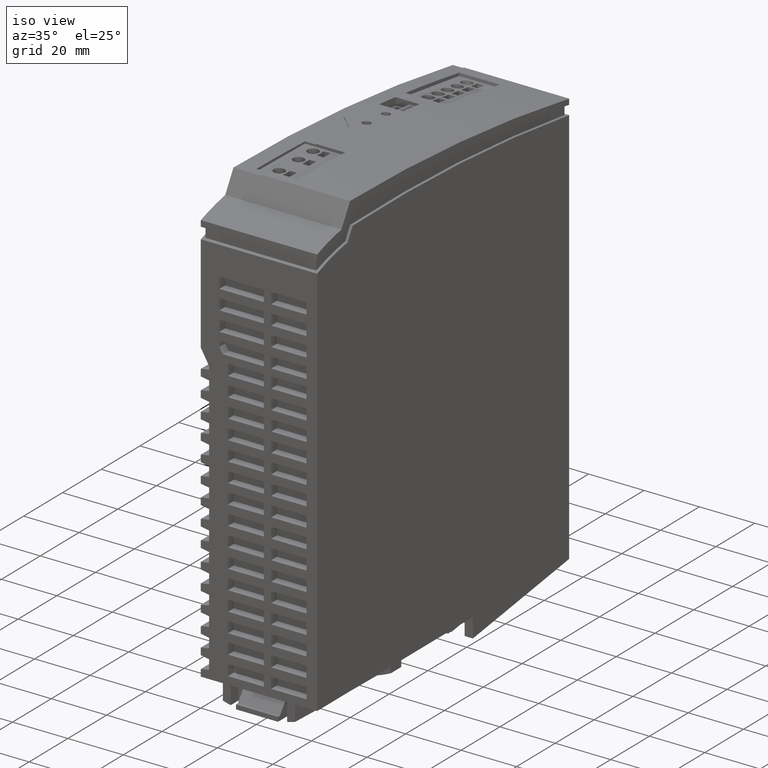
[diagram: clean part render]
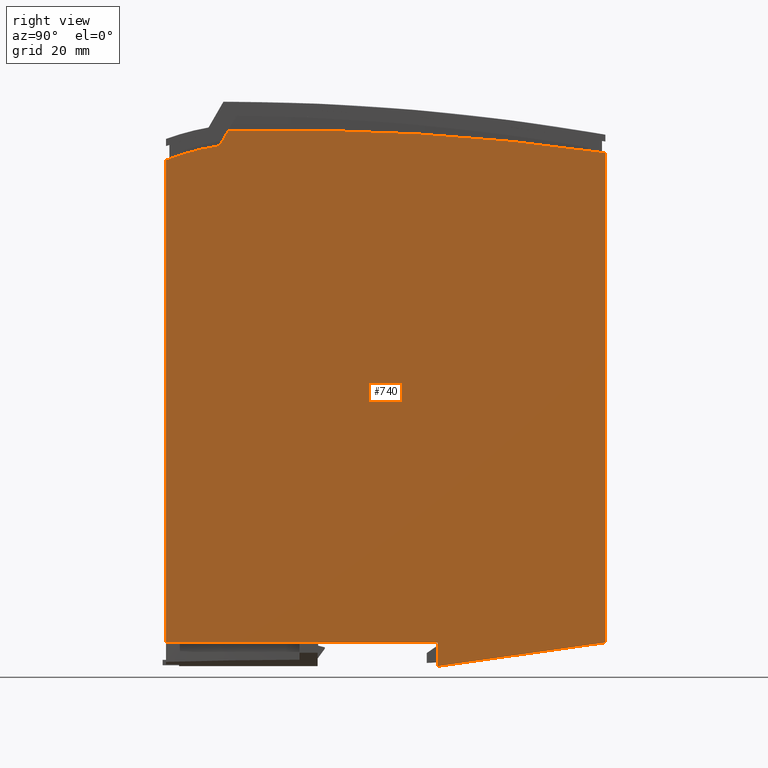
[diagram: tour spotlight — one face highlighted and labeled with its STEP entity id]
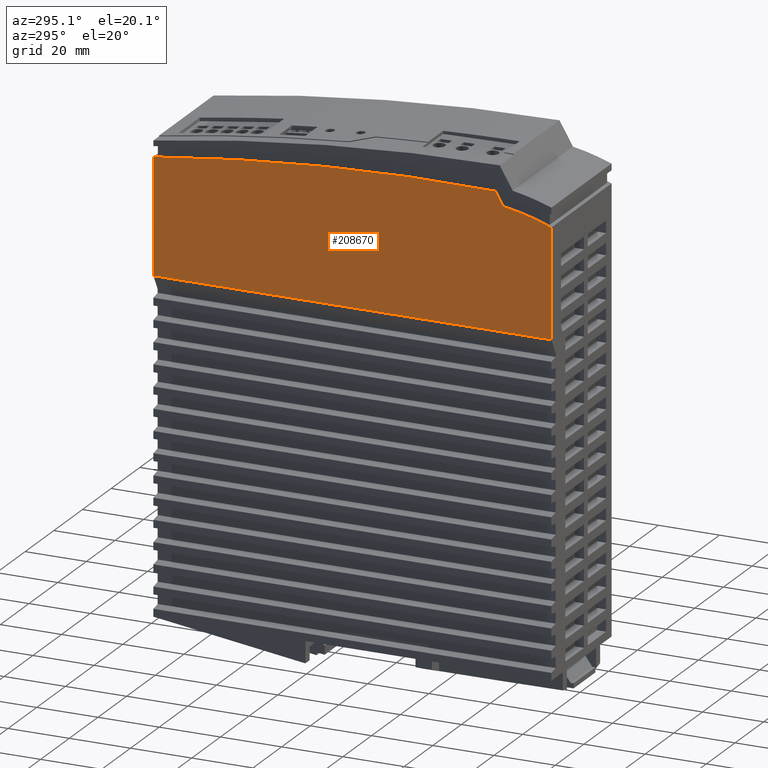
[diagram: tour spotlight — one face highlighted and labeled with its STEP entity id]
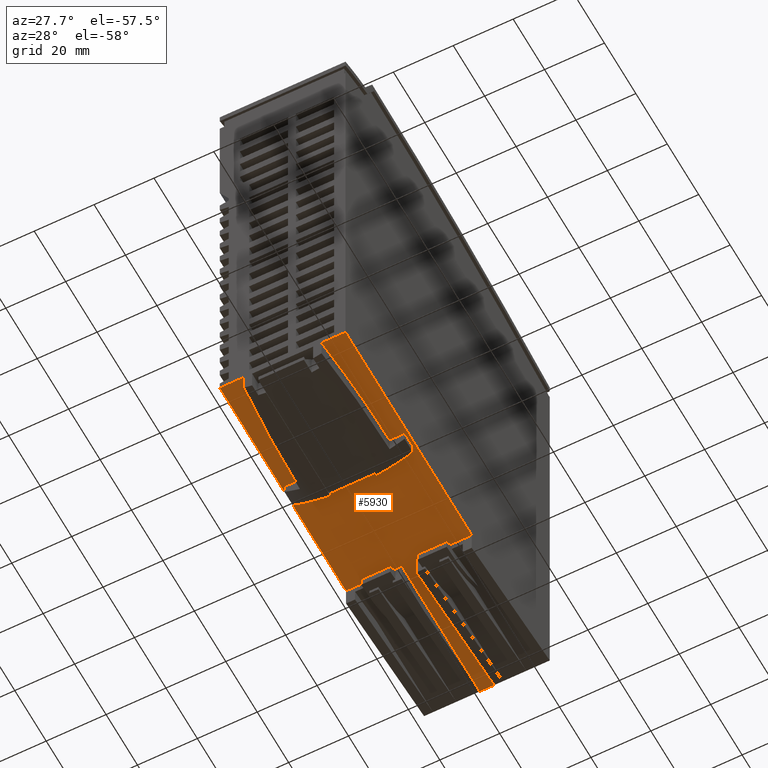
[diagram: tour spotlight — one face highlighted and labeled with its STEP entity id]
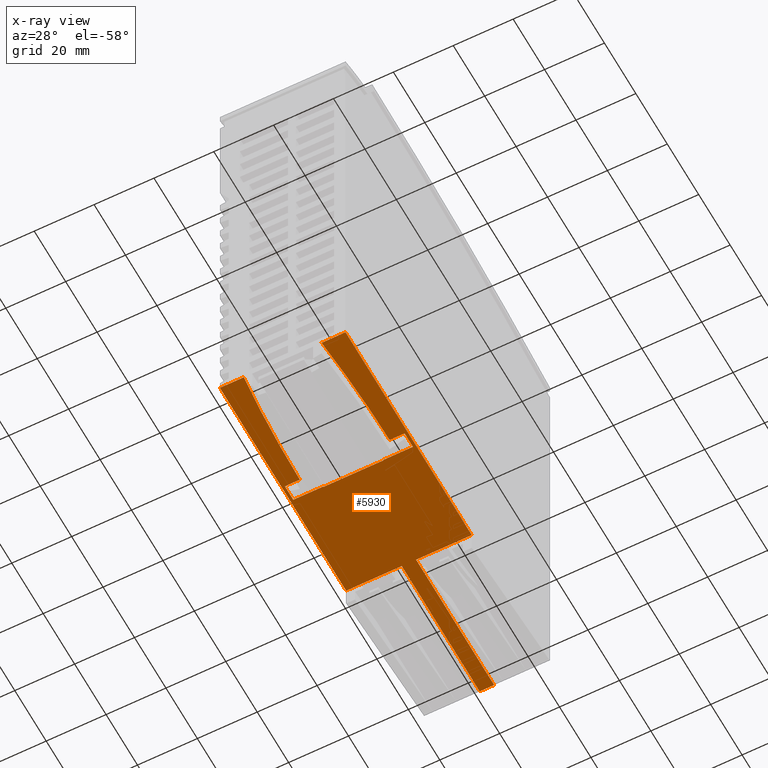
[diagram: x-ray of the same camera — body ghosted, this tour face saturated]
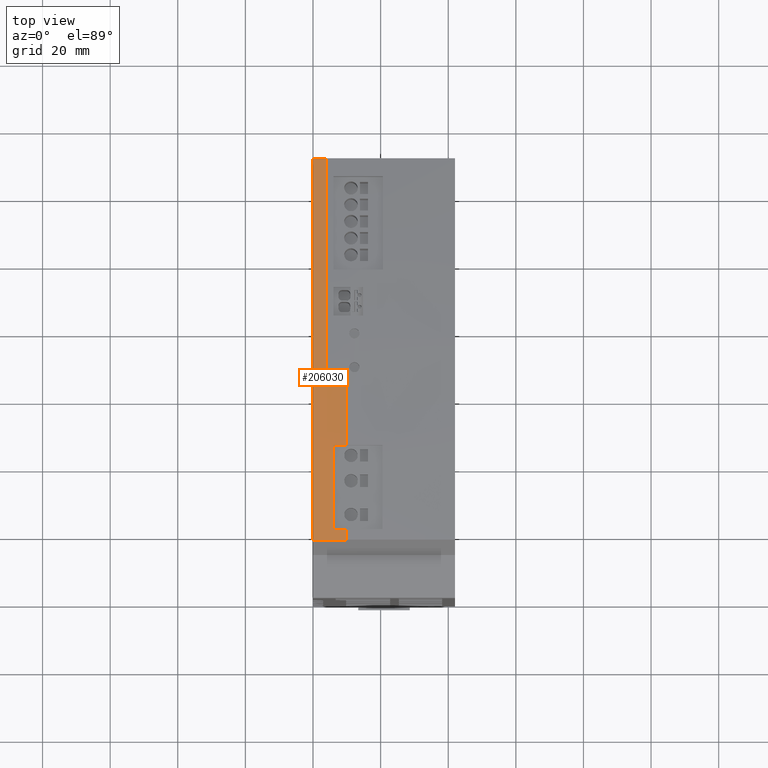
[diagram: tour spotlight — one face highlighted and labeled with its STEP entity id]
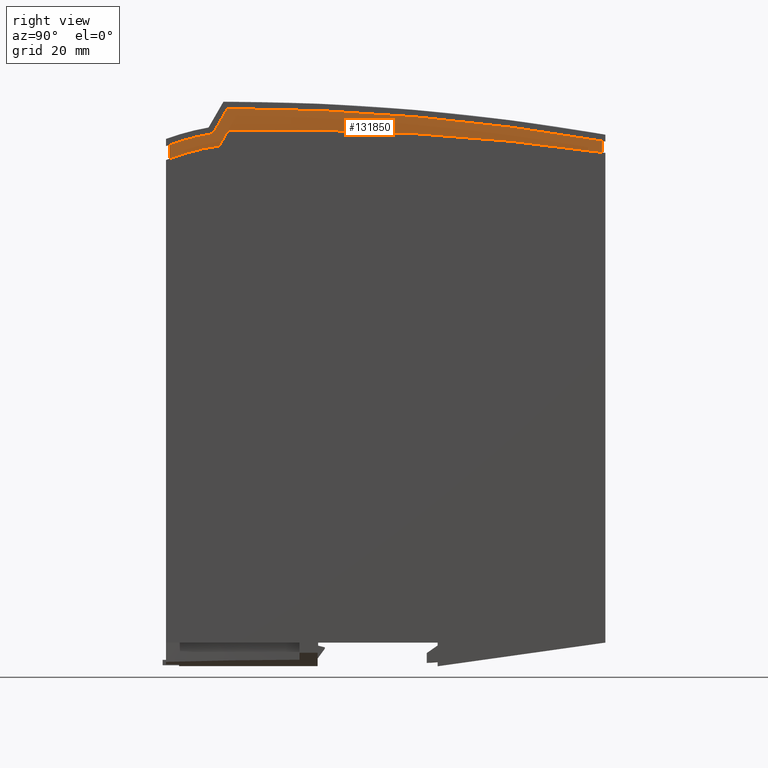
[diagram: tour spotlight — one face highlighted and labeled with its STEP entity id]
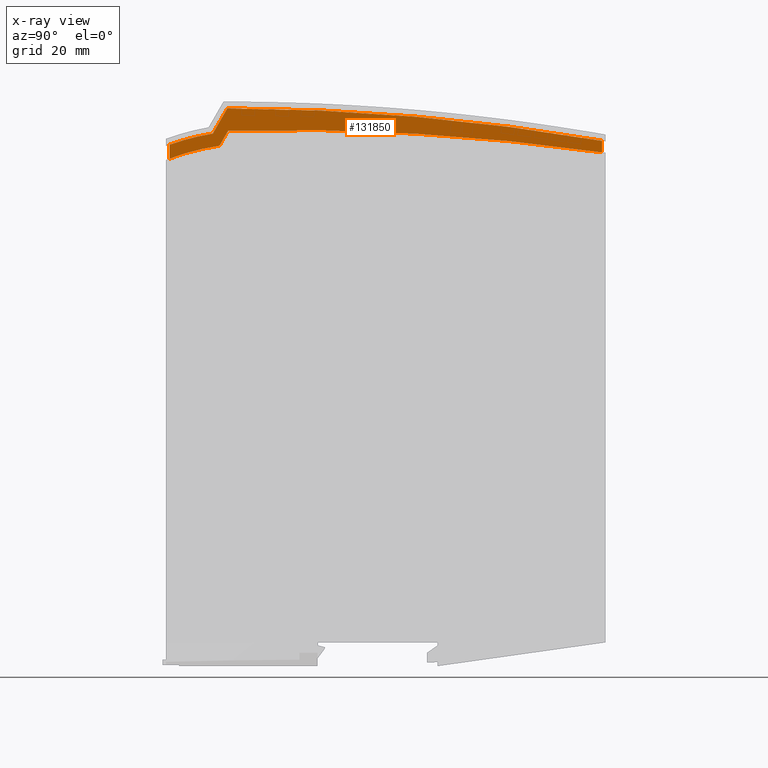
[diagram: x-ray of the same camera — body ghosted, this tour face saturated]
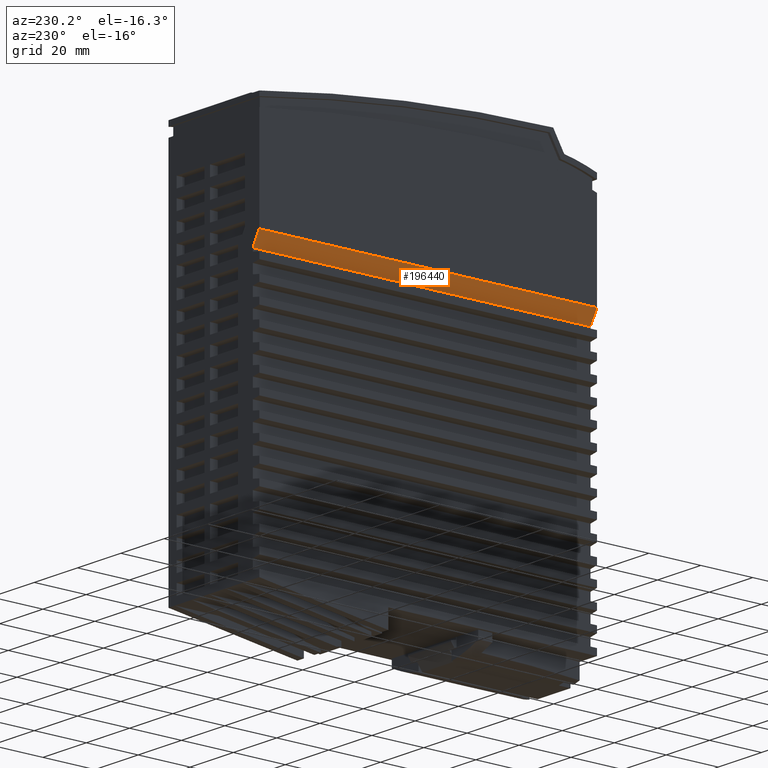
[diagram: tour spotlight — one face highlighted and labeled with its STEP entity id]
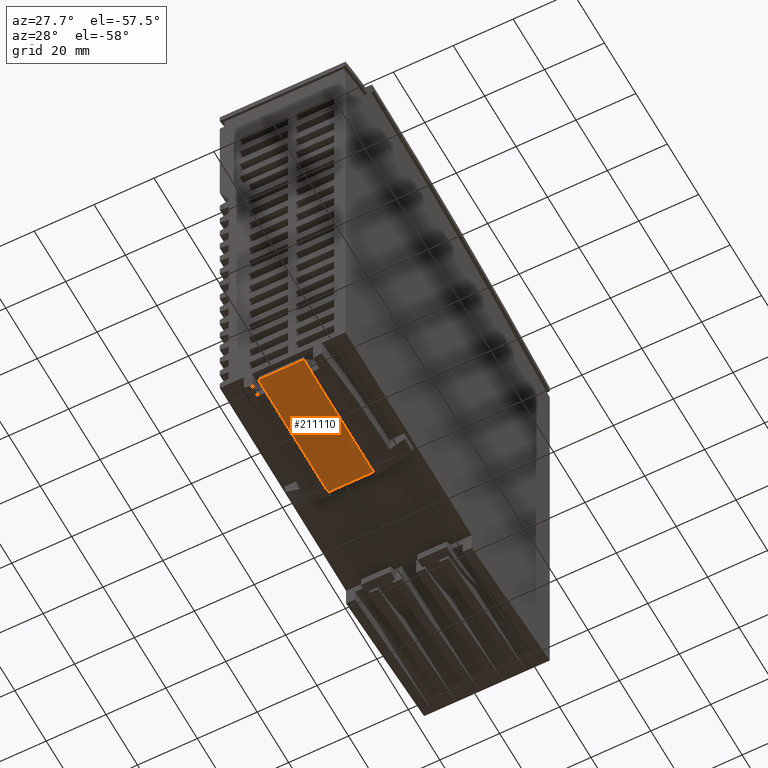
[diagram: tour spotlight — one face highlighted and labeled with its STEP entity id]
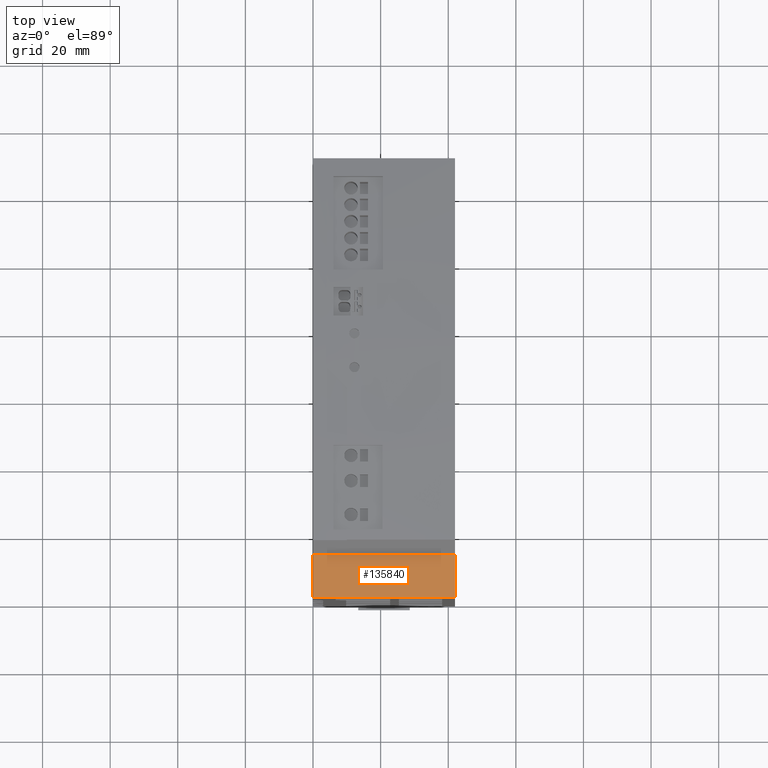
[diagram: tour spotlight — one face highlighted and labeled with its STEP entity id]
A machine part: a face-by-face anatomy tour. The part has 694 B-rep faces; the first image is the clean iso view, then the 8 largest visible faces are spotlighted one at a time (largest first), each with its STEP entity span.

Face 1 — right view, entity #740. In plain terms, the highlighted planar face has unit normal (1, 0, 0).
Definition (entity closure, byte-faithful):
#10=CARTESIAN_POINT('',(0.,0.,-50.5));
#20=DIRECTION('',(0.,0.,-1.));
#30=DIRECTION('',(1.,0.,0.));
#40=AXIS2_PLACEMENT_3D('',#10,#20,#30);
#50=PLANE('',#40);
#60=CARTESIAN_POINT('',(128.90472881771,80.35,-50.5));
#70=DIRECTION('',(-1.,0.,0.));
#80=VECTOR('',#70,1.);
#90=LINE('',#60,#80);
#100=CARTESIAN_POINT('',(0.,80.35,-50.5));
#110=VERTEX_POINT('',#100);
#120=CARTESIAN_POINT('',(-6.99999999999977,80.35,-50.5));
#130=VERTEX_POINT('',#120);
#140=EDGE_CURVE('',#110,#130,#90,.T.);
#150=ORIENTED_EDGE('',*,*,#140,.T.);
#160=CARTESIAN_POINT('',(0.,64.9999998943551,-50.5));
#170=DIRECTION('',(0.,1.,0.));
#180=VECTOR('',#170,1.);
#190=LINE('',#160,#180);
#200=CARTESIAN_POINT('',(0.,0.,-50.5));
#210=VERTEX_POINT('',#200);
#220=EDGE_CURVE('',#210,#110,#190,.T.);
#230=ORIENTED_EDGE('',*,*,#220,.T.);
#240=CARTESIAN_POINT('',(128.90472881771,0.,-50.5));
#250=DIRECTION('',(-1.,0.,0.));
#260=VECTOR('',#250,1.);
#270=LINE('',#240,#260);
#280=CARTESIAN_POINT('',(142.740813604314,0.,-50.5));
#290=VERTEX_POINT('',#280);
#300=EDGE_CURVE('',#290,#210,#270,.T.);
#310=ORIENTED_EDGE('',*,*,#300,.T.);
#320=CARTESIAN_POINT('',(78.52,25.64,-50.5));
#330=DIRECTION('',(0.,0.,1.));
#340=DIRECTION('',(1.,0.,0.));
#350=AXIS2_PLACEMENT_3D('',#320,#330,#340);
#360=CIRCLE('',#350,69.15);
#370=CARTESIAN_POINT('',(146.969994064791,15.8256832876613,-50.5));
#380=VERTEX_POINT('',#370);
#390=EDGE_CURVE('',#290,#380,#360,.T.);
#400=ORIENTED_EDGE('',*,*,#390,.F.);
#410=CARTESIAN_POINT('',(128.90472881771,5.42665736895805,-50.5));
#420=DIRECTION('',(-0.86666783043328,-0.498885629871288,0.));
#430=VECTOR('',#420,1.);
#440=LINE('',#410,#430);
#450=CARTESIAN_POINT('',(151.390000000037,18.3700000000256,-50.5));
#460=VERTEX_POINT('',#450);
#470=EDGE_CURVE('',#460,#380,#440,.T.);
#480=ORIENTED_EDGE('',*,*,#470,.T.);
#490=CARTESIAN_POINT('',(-504.,36.,-50.5));
#500=DIRECTION('',(0.,0.,1.));
#510=DIRECTION('',(1.,0.,0.));
#520=AXIS2_PLACEMENT_3D('',#490,#500,#510);
#530=CIRCLE('',#520,655.6270807403);
#540=CARTESIAN_POINT('',(144.853503496781,130.,-50.5));
#550=VERTEX_POINT('',#540);
#560=EDGE_CURVE('',#460,#550,#530,.T.);
#570=ORIENTED_EDGE('',*,*,#560,.F.);
#580=CARTESIAN_POINT('',(128.90472881771,130.,-50.5));
#590=DIRECTION('',(-1.,0.,0.));
#600=VECTOR('',#590,1.);
#610=LINE('',#580,#600);
#620=CARTESIAN_POINT('',(0.,130.,-50.5));
#630=VERTEX_POINT('',#620);
#640=EDGE_CURVE('',#550,#630,#610,.T.);
#650=ORIENTED_EDGE('',*,*,#640,.F.);
#660=CARTESIAN_POINT('',(-9.16414905819761,64.9999998943551,-50.5));
#670=DIRECTION('',(0.139606237490195,0.990207098769662,0.));
#680=VECTOR('',#670,1.);
#690=LINE('',#660,#680);
#700=EDGE_CURVE('',#130,#630,#690,.T.);
#710=ORIENTED_EDGE('',*,*,#700,.T.);
#720=EDGE_LOOP('',(#710,#650,#570,#480,#400,#310,#230,#150));
#730=FACE_OUTER_BOUND('',#720,.T.);
#740=ADVANCED_FACE('',(#730),#50,.T.);

Face 2 — auxiliary view, entity #208670. In plain terms, the highlighted planar face has unit normal (-1, 0, 0).
Definition (entity closure, byte-faithful):
#26030=CARTESIAN_POINT('',(144.853503496781,130.,-8.5));
#26040=VERTEX_POINT('',#26030);
#26070=CARTESIAN_POINT('',(128.90472881771,130.,-8.5));
#26080=DIRECTION('',(1.,0.,0.));
#26090=VECTOR('',#26080,1.);
#26100=LINE('',#26070,#26090);
#26110=CARTESIAN_POINT('',(107.392304845406,130.,-8.5));
#26120=VERTEX_POINT('',#26110);
#26130=EDGE_CURVE('',#26120,#26040,#26100,.T.);
#89340=CARTESIAN_POINT('',(107.392304845406,0.,-8.5));
#89350=VERTEX_POINT('',#89340);
#89380=CARTESIAN_POINT('',(128.90472881771,0.,-8.5));
#89390=DIRECTION('',(1.,0.,0.));
#89400=VECTOR('',#89390,1.);
#89410=LINE('',#89380,#89400);
#89420=CARTESIAN_POINT('',(142.740813604314,0.,-8.5));
#89430=VERTEX_POINT('',#89420);
#89440=EDGE_CURVE('',#89350,#89430,#89410,.T.);
#130980=CARTESIAN_POINT('',(151.390000000037,18.3700000000258,-8.5));
#130990=VERTEX_POINT('',#130980);
#131020=CARTESIAN_POINT('',(-504.,36.,-8.5));
#131030=DIRECTION('',(0.,0.,1.));
#131040=DIRECTION('',(1.,0.,0.));
#131050=AXIS2_PLACEMENT_3D('',#131020,#131030,#131040);
#131060=CIRCLE('',#131050,655.6270807403);
#131070=EDGE_CURVE('',#130990,#26040,#131060,.T.);
#131980=CARTESIAN_POINT('',(78.52,25.64,-8.5));
#131990=DIRECTION('',(0.,0.,1.));
#132000=DIRECTION('',(1.,0.,0.));
#132010=AXIS2_PLACEMENT_3D('',#131980,#131990,#132000);
#132020=CIRCLE('',#132010,69.15);
#132030=CARTESIAN_POINT('',(146.969994064791,15.8256832876613,-8.5));
#132040=VERTEX_POINT('',#132030);
#132050=EDGE_CURVE('',#89430,#132040,#132020,.T.);
#133390=CARTESIAN_POINT('',(128.90472881771,5.42665736895805,-8.5));
#133400=DIRECTION('',(-0.86666783043328,-0.498885629871288,0.));
#133410=VECTOR('',#133400,1.);
#133420=LINE('',#133390,#133410);
#133430=EDGE_CURVE('',#130990,#132040,#133420,.T.);
#196330=CARTESIAN_POINT('',(107.392304845406,64.9999998943551,-8.5));
#196340=DIRECTION('',(0.,-1.,0.));
#196350=VECTOR('',#196340,1.);
#196360=LINE('',#196330,#196350);
#196370=EDGE_CURVE('',#26120,#89350,#196360,.T.);
#208540=CARTESIAN_POINT('',(106.9903810568,0.,-8.5));
#208550=DIRECTION('',(0.,0.,1.));
#208560=DIRECTION('',(1.,0.,0.));
#208570=AXIS2_PLACEMENT_3D('',#208540,#208550,#208560);
#208580=PLANE('',#208570);
#208590=ORIENTED_EDGE('',*,*,#196370,.T.);
#208600=ORIENTED_EDGE('',*,*,#26130,.F.);
#208610=ORIENTED_EDGE('',*,*,#131070,.T.);
#208620=ORIENTED_EDGE('',*,*,#133430,.F.);
#208630=ORIENTED_EDGE('',*,*,#132050,.T.);
#208640=ORIENTED_EDGE('',*,*,#89440,.T.);
#208650=EDGE_LOOP('',(#208640,#208630,#208620,#208610,#208600,#208590));
#208660=FACE_OUTER_BOUND('',#208650,.T.);
#208670=ADVANCED_FACE('',(#208660),#208580,.T.);

Face 3 — auxiliary view, entity #5930. An x-ray twin of the same camera follows (body ghosted, this face saturated) — the face is partly hidden behind the body. In plain terms, the highlighted planar face has unit normal (0, 0, 1).
Definition (entity closure, byte-faithful):
#100=CARTESIAN_POINT('',(0.,80.35,-50.5));
#110=VERTEX_POINT('',#100);
#160=CARTESIAN_POINT('',(0.,64.9999998943551,-50.5));
#170=DIRECTION('',(0.,1.,0.));
#180=VECTOR('',#170,1.);
#190=LINE('',#160,#180);
#200=CARTESIAN_POINT('',(0.,0.,-50.5));
#210=VERTEX_POINT('',#200);
#220=EDGE_CURVE('',#210,#110,#190,.T.);
#1890=CARTESIAN_POINT('',(0.,45.000000000017,-19.5));
#1900=VERTEX_POINT('',#1890);
#1930=CARTESIAN_POINT('',(0.,64.9999998943551,-19.5));
#1940=DIRECTION('',(0.,-1.,0.));
#1950=VECTOR('',#1940,1.);
#1960=LINE('',#1930,#1950);
#1970=CARTESIAN_POINT('',(0.,44.85,-19.5));
#1980=VERTEX_POINT('',#1970);
#1990=EDGE_CURVE('',#1900,#1980,#1960,.T.);
#2810=CARTESIAN_POINT('',(0.,44.85,-39.5));
#2820=VERTEX_POINT('',#2810);
#2850=CARTESIAN_POINT('',(0.,64.9999998943551,-39.5));
#2860=DIRECTION('',(0.,-1.,0.));
#2870=VECTOR('',#2860,1.);
#2880=LINE('',#2850,#2870);
#2890=CARTESIAN_POINT('',(0.,45.000000000017,-39.5));
#2900=VERTEX_POINT('',#2890);
#2910=EDGE_CURVE('',#2900,#2820,#2880,.T.);
#4120=CARTESIAN_POINT('',(0.,44.85,-49.5));
#4130=VERTEX_POINT('',#4120);
#4160=CARTESIAN_POINT('',(0.,44.85,-39.5));
#4170=DIRECTION('',(0.,0.,-1.));
#4180=VECTOR('',#4170,1.);
#4190=LINE('',#4160,#4180);
#4200=EDGE_CURVE('',#2820,#4130,#4190,.T.);
#4430=CARTESIAN_POINT('',(0.,39.5,-49.5));
#4440=VERTEX_POINT('',#4430);
#4490=CARTESIAN_POINT('',(0.,44.35,-49.5));
#4500=DIRECTION('',(0.,-1.,0.));
#4510=VECTOR('',#4500,1.);
#4520=LINE('',#4490,#4510);
#4530=EDGE_CURVE('',#4130,#4440,#4520,.T.);
#4650=CARTESIAN_POINT('',(0.,80.35,-70.3000024));
#4660=DIRECTION('',(1.,0.,0.));
#4670=DIRECTION('',(0.,-1.,0.));
#4680=AXIS2_PLACEMENT_3D('',#4650,#4660,#4670);
#4690=PLANE('',#4680);
#4700=CARTESIAN_POINT('',(0.,41.47129019691,385.495481389));
#4710=DIRECTION('',(-1.,0.,0.));
#4720=DIRECTION('',(0.,-0.0114810397156901,-0.999934090691505));
#4730=AXIS2_PLACEMENT_3D('',#4700,#4710,#4720);
#4740=CIRCLE('',#4730,430.);
#4750=CARTESIAN_POINT('',(0.,39.5,-44.500000000002));
#4760=VERTEX_POINT('',#4750);
#4770=CARTESIAN_POINT('',(0.,0.,-42.5000000000022));
#4780=VERTEX_POINT('',#4770);
#4790=EDGE_CURVE('',#4760,#4780,#4740,.T.);
#4800=ORIENTED_EDGE('',*,*,#4790,.F.);
#4810=CARTESIAN_POINT('',(0.,0.,4.5));
#4820=DIRECTION('',(0.,0.,1.));
#4830=VECTOR('',#4820,1.);
#4840=LINE('',#4810,#4830);
#4850=EDGE_CURVE('',#210,#4780,#4840,.T.);
#4860=ORIENTED_EDGE('',*,*,#4850,.T.);
#4870=ORIENTED_EDGE('',*,*,#220,.F.);
#4880=CARTESIAN_POINT('',(0.,80.35,4.5));
#4890=DIRECTION('',(0.,0.,1.));
#4900=VECTOR('',#4890,1.);
#4910=LINE('',#4880,#4900);
#4920=CARTESIAN_POINT('',(0.,80.35,-31.9));
#4930=VERTEX_POINT('',#4920);
#4940=EDGE_CURVE('',#110,#4930,#4910,.T.);
#4950=ORIENTED_EDGE('',*,*,#4940,.F.);
#4960=CARTESIAN_POINT('',(0.,64.9999998943551,-31.9));
#4970=DIRECTION('',(0.,-1.,0.));
#4980=VECTOR('',#4970,1.);
#4990=LINE('',#4960,#4980);
#5000=CARTESIAN_POINT('',(0.,130.,-31.9));
#5010=VERTEX_POINT('',#5000);
#5020=EDGE_CURVE('',#5010,#4930,#4990,.T.);
#5030=ORIENTED_EDGE('',*,*,#5020,.T.);
#5040=CARTESIAN_POINT('',(0.,130.,4.5));
#5050=DIRECTION('',(0.,0.,1.));
#5060=VECTOR('',#5050,1.);
#5070=LINE('',#5040,#5060);
#5080=CARTESIAN_POINT('',(0.,130.,-27.1));
#5090=VERTEX_POINT('',#5080);
#5100=EDGE_CURVE('',#5010,#5090,#5070,.T.);
#5110=ORIENTED_EDGE('',*,*,#5100,.F.);
#5120=CARTESIAN_POINT('',(0.,64.9999998943551,-27.1));
#5130=DIRECTION('',(0.,-1.,0.));
#5140=VECTOR('',#5130,1.);
#5150=LINE('',#5120,#5140);
#5160=CARTESIAN_POINT('',(0.,80.35,-27.1));
#5170=VERTEX_POINT('',#5160);
#5180=EDGE_CURVE('',#5090,#5170,#5150,.T.);
#5190=ORIENTED_EDGE('',*,*,#5180,.F.);
#5200=CARTESIAN_POINT('',(0.,80.35,4.5));
#5210=DIRECTION('',(0.,0.,1.));
#5220=VECTOR('',#5210,1.);
#5230=LINE('',#5200,#5220);
#5240=CARTESIAN_POINT('',(0.,80.35,-8.5));
#5250=VERTEX_POINT('',#5240);
#5260=EDGE_CURVE('',#5170,#5250,#5230,.T.);
#5270=ORIENTED_EDGE('',*,*,#5260,.F.);
#5280=CARTESIAN_POINT('',(0.,64.9999998943551,-8.5));
#5290=DIRECTION('',(0.,-1.,0.));
#5300=VECTOR('',#5290,1.);
#5310=LINE('',#5280,#5300);
#5320=CARTESIAN_POINT('',(0.,0.,-8.5));
#5330=VERTEX_POINT('',#5320);
#5340=EDGE_CURVE('',#5250,#5330,#5310,.T.);
#5350=ORIENTED_EDGE('',*,*,#5340,.F.);
#5360=CARTESIAN_POINT('',(0.,0.,4.5));
#5370=DIRECTION('',(0.,0.,1.));
#5380=VECTOR('',#5370,1.);
#5390=LINE('',#5360,#5380);
#5400=CARTESIAN_POINT('',(0.,2.8421709430404E-14,-16.4999999999978));
#5410=VERTEX_POINT('',#5400);
#5420=EDGE_CURVE('',#5410,#5330,#5390,.T.);
#5430=ORIENTED_EDGE('',*,*,#5420,.T.);
#5440=CARTESIAN_POINT('',(0.,41.47129019691,-444.495481389));
#5450=DIRECTION('',(-1.,0.,0.));
#5460=DIRECTION('',(0.,-0.0952820702253681,0.99545031372418));
#5470=AXIS2_PLACEMENT_3D('',#5440,#5450,#5460);
#5480=CIRCLE('',#5470,430.);
#5490=CARTESIAN_POINT('',(0.,39.5,-14.499999999998));
#5500=VERTEX_POINT('',#5490);
#5510=EDGE_CURVE('',#5410,#5500,#5480,.T.);
#5520=ORIENTED_EDGE('',*,*,#5510,.F.);
#5530=CARTESIAN_POINT('',(0.,39.5,4.5));
#5540=DIRECTION('',(0.,0.,1.));
#5550=VECTOR('',#5540,1.);
#5560=LINE('',#5530,#5550);
#5570=CARTESIAN_POINT('',(0.,39.5,-9.49999999999999));
#5580=VERTEX_POINT('',#5570);
#5590=EDGE_CURVE('',#5500,#5580,#5560,.T.);
#5600=ORIENTED_EDGE('',*,*,#5590,.F.);
#5610=CARTESIAN_POINT('',(0.,44.35,-9.49999999999999));
#5620=DIRECTION('',(0.,-1.,0.));
#5630=VECTOR('',#5620,1.);
#5640=LINE('',#5610,#5630);
#5650=CARTESIAN_POINT('',(0.,44.85,-9.49999999999999));
#5660=VERTEX_POINT('',#5650);
#5670=EDGE_CURVE('',#5660,#5580,#5640,.T.);
#5680=ORIENTED_EDGE('',*,*,#5670,.T.);
#5690=CARTESIAN_POINT('',(0.,44.85,-19.5));
#5700=DIRECTION('',(0.,0.,1.));
#5710=VECTOR('',#5700,1.);
#5720=LINE('',#5690,#5710);
#5730=EDGE_CURVE('',#1980,#5660,#5720,.T.);
#5740=ORIENTED_EDGE('',*,*,#5730,.T.);
#5750=ORIENTED_EDGE('',*,*,#1990,.T.);
#5760=CARTESIAN_POINT('',(0.,45.000000000017,4.5));
#5770=DIRECTION('',(0.,0.,-1.));
#5780=VECTOR('',#5770,1.);
#5790=LINE('',#5760,#5780);
#5800=EDGE_CURVE('',#1900,#2900,#5790,.T.);
#5810=ORIENTED_EDGE('',*,*,#5800,.F.);
#5820=ORIENTED_EDGE('',*,*,#2910,.F.);
#5830=ORIENTED_EDGE('',*,*,#4200,.F.);
#5840=ORIENTED_EDGE('',*,*,#4530,.F.);
#5850=CARTESIAN_POINT('',(0.,39.5,4.5));
#5860=DIRECTION('',(0.,0.,1.));
#5870=VECTOR('',#5860,1.);
#5880=LINE('',#5850,#5870);
#5890=EDGE_CURVE('',#4440,#4760,#5880,.T.);
#5900=ORIENTED_EDGE('',*,*,#5890,.F.);
#5910=EDGE_LOOP('',(#5900,#5840,#5830,#5820,#5810,#5750,#5740,#5680,
#5600,#5520,#5430,#5350,#5270,#5190,#5110,#5030,#4950,#4870,#4860,#4800)
);
#5920=FACE_OUTER_BOUND('',#5910,.T.);
#5930=ADVANCED_FACE('',(#5920),#4690,.F.);

Face 4 — top view, entity #206030. In plain terms, the highlighted cylindrical surface (partial cylindrical patch) has radius 659.9 mm, axis along (1, 0, 0).
Definition (entity closure, byte-faithful):
#158190=CARTESIAN_POINT('',(159.150650569038,45.0084854985634,
-14.6037309873865));
#158200=VERTEX_POINT('',#158190);
#158230=CARTESIAN_POINT('',(159.150650569038,45.0084854985634,-8.5));
#158240=DIRECTION('',(0.,0.,-1.));
#158250=VECTOR('',#158240,1.);
#158260=LINE('',#158230,#158250);
#158270=CARTESIAN_POINT('',(159.150650569038,45.0084854985634,-18.5));
#158280=VERTEX_POINT('',#158270);
#158290=EDGE_CURVE('',#158200,#158280,#158260,.T.);
#158660=CARTESIAN_POINT('',(159.738420674858,20.0149368628259,
-14.6037309873865));
#158670=VERTEX_POINT('',#158660);
#158700=CARTESIAN_POINT('',(-500.154692,17.,-14.6037309873865));
#158710=DIRECTION('',(0.,0.,-1.));
#158720=DIRECTION('',(-1.,0.,0.));
#158730=AXIS2_PLACEMENT_3D('',#158700,#158710,#158720);
#158740=CIRCLE('',#158730,659.9);
#158750=EDGE_CURVE('',#158200,#158670,#158740,.T.);
#158960=CARTESIAN_POINT('',(159.738420674858,20.0149368628259,-18.5));
#158970=VERTEX_POINT('',#158960);
#159000=CARTESIAN_POINT('',(159.738420674858,20.0149368628259,-8.5));
#159010=DIRECTION('',(0.,0.,-1.));
#159020=VECTOR('',#159010,1.);
#159030=LINE('',#159000,#159020);
#159040=EDGE_CURVE('',#158670,#158970,#159030,.T.);
#195090=CARTESIAN_POINT('',(149.998374592783,130.,-12.5));
#195100=VERTEX_POINT('',#195090);
#195130=CARTESIAN_POINT('',(149.998374592783,130.,-8.5));
#195140=DIRECTION('',(0.,0.,-1.));
#195150=VECTOR('',#195140,1.);
#195160=LINE('',#195130,#195150);
#195170=CARTESIAN_POINT('',(149.998374592783,130.,-8.5));
#195180=VERTEX_POINT('',#195170);
#195190=EDGE_CURVE('',#195180,#195100,#195160,.T.);
#195510=CARTESIAN_POINT('',(159.745291614598,16.8529440451184,-8.5));
#195520=VERTEX_POINT('',#195510);
#195550=CARTESIAN_POINT('',(159.745291614598,16.8529440451184,-8.5));
#195560=DIRECTION('',(0.,0.,-1.));
#195570=VECTOR('',#195560,1.);
#195580=LINE('',#195550,#195570);
#195590=CARTESIAN_POINT('',(159.745291614598,16.8529440451184,-18.5));
#195600=VERTEX_POINT('',#195590);
#195610=EDGE_CURVE('',#195520,#195600,#195580,.T.);
#196070=CARTESIAN_POINT('',(-500.154692,17.,-8.5));
#196080=DIRECTION('',(0.,0.,-1.));
#196090=DIRECTION('',(-1.,0.,0.));
#196100=AXIS2_PLACEMENT_3D('',#196070,#196080,#196090);
#196110=CIRCLE('',#196100,659.9);
#196120=EDGE_CURVE('',#195180,#195520,#196110,.T.);
#205630=CARTESIAN_POINT('',(-500.154692,17.,-8.5));
#205640=DIRECTION('',(0.,0.,-1.));
#205650=DIRECTION('',(-1.,0.,0.));
#205660=AXIS2_PLACEMENT_3D('',#205630,#205640,#205650);
#205670=CYLINDRICAL_SURFACE('',#205660,659.9);
#205680=CARTESIAN_POINT('',(-500.154692,17.,-18.5));
#205690=DIRECTION('',(0.,0.,-1.));
#205700=DIRECTION('',(-1.,0.,0.));
#205710=AXIS2_PLACEMENT_3D('',#205680,#205690,#205700);
#205720=CIRCLE('',#205710,659.9);
#205730=EDGE_CURVE('',#158970,#195600,#205720,.T.);
#205740=ORIENTED_EDGE('',*,*,#205730,.F.);
#205750=ORIENTED_EDGE('',*,*,#195610,.T.);
#205760=ORIENTED_EDGE('',*,*,#196120,.T.);
#205770=ORIENTED_EDGE('',*,*,#195190,.F.);
#205780=CARTESIAN_POINT('',(-500.154692,17.,-12.5));
#205790=DIRECTION('',(0.,0.,-1.));
#205800=DIRECTION('',(-1.,0.,0.));
#205810=AXIS2_PLACEMENT_3D('',#205780,#205790,#205800);
#205820=CIRCLE('',#205810,659.9);
#205830=CARTESIAN_POINT('',(157.771603264143,67.9999999999959,-12.5));
#205840=VERTEX_POINT('',#205830);
#205850=EDGE_CURVE('',#195100,#205840,#205820,.T.);
#205860=ORIENTED_EDGE('',*,*,#205850,.F.);
#205870=CARTESIAN_POINT('',(-500.154692,17.,-63.4999999999965));
#205880=DIRECTION('',(0.,-0.707106781186548,0.707106781186548));
#205890=DIRECTION('',(0.,0.707106781186548,0.707106781186548));
#205900=AXIS2_PLACEMENT_3D('',#205870,#205880,#205890);
#205910=ELLIPSE('',#205900,933.239529810005,659.9);
#205920=CARTESIAN_POINT('',(158.209196742389,61.9999999999964,-18.5));
#205930=VERTEX_POINT('',#205920);
#205940=EDGE_CURVE('',#205930,#205840,#205910,.T.);
#205950=ORIENTED_EDGE('',*,*,#205940,.T.);
#205960=EDGE_CURVE('',#205930,#158280,#205720,.T.);
#205970=ORIENTED_EDGE('',*,*,#205960,.F.);
#205980=ORIENTED_EDGE('',*,*,#158290,.T.);
#205990=ORIENTED_EDGE('',*,*,#158750,.F.);
#206000=ORIENTED_EDGE('',*,*,#159040,.F.);
#206010=EDGE_LOOP('',(#206000,#205990,#205980,#205970,#205950,#205860,
#205770,#205760,#205750,#205740));
#206020=FACE_OUTER_BOUND('',#206010,.T.);
#206030=ADVANCED_FACE('',(#206020),#205670,.T.);

Face 5 — right view, entity #131850. An x-ray twin of the same camera follows (body ghosted, this face saturated) — the face is partly hidden behind the body. In plain terms, the highlighted planar face has unit normal (-1, 0, 0).
Definition (entity closure, byte-faithful):
#130640=CARTESIAN_POINT('',(151.390000000037,18.3700000000256,-49.5));
#130650=VERTEX_POINT('',#130640);
#130680=CARTESIAN_POINT('',(-504.,36.,-49.5));
#130690=DIRECTION('',(0.,0.,1.));
#130700=DIRECTION('',(1.,0.,0.));
#130710=AXIS2_PLACEMENT_3D('',#130680,#130690,#130700);
#130720=CIRCLE('',#130710,655.6270807403);
#130730=CARTESIAN_POINT('',(144.997587822981,129.,-49.5));
#130740=VERTEX_POINT('',#130730);
#130750=EDGE_CURVE('',#130650,#130740,#130720,.T.);
#131200=CARTESIAN_POINT('',(152.865550219146,74.1364483484179,-49.5));
#131210=DIRECTION('',(-0.,0.,1.));
#131220=DIRECTION('',(0.,-1.,0.));
#131230=AXIS2_PLACEMENT_3D('',#131200,#131210,#131220);
#131240=PLANE('',#131230);
#131250=ORIENTED_EDGE('',*,*,#130750,.T.);
#131260=CARTESIAN_POINT('',(-154.423901034539,-157.66764127803,-49.5));
#131270=DIRECTION('',(0.86666783043328,0.498885629871288,0.));
#131280=VECTOR('',#131270,1.);
#131290=LINE('',#131260,#131280);
#131300=CARTESIAN_POINT('',(146.969994064791,15.8256832876613,-49.5));
#131310=VERTEX_POINT('',#131300);
#131320=EDGE_CURVE('',#131310,#130650,#131290,.T.);
#131330=ORIENTED_EDGE('',*,*,#131320,.T.);
#131340=CARTESIAN_POINT('',(78.52,25.64,-49.5));
#131350=DIRECTION('',(0.,0.,1.));
#131360=DIRECTION('',(1.,0.,0.));
#131370=AXIS2_PLACEMENT_3D('',#131340,#131350,#131360);
#131380=CIRCLE('',#131370,69.15);
#131390=CARTESIAN_POINT('',(143.131089605423,1.,-49.5));
#131400=VERTEX_POINT('',#131390);
#131410=EDGE_CURVE('',#131400,#131310,#131380,.T.);
#131420=ORIENTED_EDGE('',*,*,#131410,.T.);
#131430=CARTESIAN_POINT('',(128.90472881771,1.,-49.5));
#131440=DIRECTION('',(-1.,0.,0.));
#131450=VECTOR('',#131440,1.);
#131460=LINE('',#131430,#131450);
#131470=CARTESIAN_POINT('',(147.235029692007,1.00000000000004,-49.5));
#131480=VERTEX_POINT('',#131470);
#131490=EDGE_CURVE('',#131480,#131400,#131460,.T.);
#131500=ORIENTED_EDGE('',*,*,#131490,.T.);
#131510=CARTESIAN_POINT('',(78.53,25.67020257356,-49.5));
#131520=DIRECTION('',(0.,0.,-1.));
#131530=DIRECTION('',(-1.,0.,0.));
#131540=AXIS2_PLACEMENT_3D('',#131510,#131520,#131530);
#131550=CIRCLE('',#131540,73.);
#131560=CARTESIAN_POINT('',(150.569044107833,13.8644360152317,-49.5));
#131570=VERTEX_POINT('',#131560);
#131580=EDGE_CURVE('',#131570,#131480,#131550,.T.);
#131590=ORIENTED_EDGE('',*,*,#131580,.T.);
#131600=CARTESIAN_POINT('',(190.555487267199,36.9506197497137,-49.5));
#131610=DIRECTION('',(-0.866025403667339,-0.500000000202823,0.));
#131620=VECTOR('',#131610,1.);
#131630=LINE('',#131600,#131620);
#131640=CARTESIAN_POINT('',(157.998987853453,18.1541160391493,-49.5));
#131650=VERTEX_POINT('',#131640);
#131660=EDGE_CURVE('',#131650,#131570,#131630,.T.);
#131670=ORIENTED_EDGE('',*,*,#131660,.T.);
#131680=CARTESIAN_POINT('',(-500.,17.,-49.5));
#131690=DIRECTION('',(0.,0.,-1.));
#131700=DIRECTION('',(-1.,0.,0.));
#131710=AXIS2_PLACEMENT_3D('',#131680,#131690,#131700);
#131720=CIRCLE('',#131710,658.);
#131730=CARTESIAN_POINT('',(148.398025906927,129.,-49.5));
#131740=VERTEX_POINT('',#131730);
#131750=EDGE_CURVE('',#131740,#131650,#131720,.T.);
#131760=ORIENTED_EDGE('',*,*,#131750,.T.);
#131770=CARTESIAN_POINT('',(128.90472881771,129.,-49.5));
#131780=DIRECTION('',(1.,0.,0.));
#131790=VECTOR('',#131780,1.);
#131800=LINE('',#131770,#131790);
#131810=EDGE_CURVE('',#130740,#131740,#131800,.T.);
#131820=ORIENTED_EDGE('',*,*,#131810,.T.);
#131830=EDGE_LOOP('',(#131820,#131760,#131670,#131590,#131500,#131420,
#131330,#131250));
#131840=FACE_OUTER_BOUND('',#131830,.T.);
#131850=ADVANCED_FACE('',(#131840),#131240,.F.);

Face 6 — auxiliary view, entity #196440. In plain terms, the highlighted planar face has unit normal (-0.866, 0, -0.5).
Definition (entity closure, byte-faithful):
#800=CARTESIAN_POINT('',(102.1961524227,64.9999998943551,-11.5));
#810=DIRECTION('',(0.,1.,0.));
#820=VECTOR('',#810,1.);
#830=LINE('',#800,#820);
#840=CARTESIAN_POINT('',(102.1961524227,0.,-11.5));
#850=VERTEX_POINT('',#840);
#860=CARTESIAN_POINT('',(102.1961524227,130.,-11.5));
#870=VERTEX_POINT('',#860);
#880=EDGE_CURVE('',#850,#870,#830,.T.);
#26110=CARTESIAN_POINT('',(107.392304845406,130.,-8.5));
#26120=VERTEX_POINT('',#26110);
#26150=CARTESIAN_POINT('',(128.90472881771,130.,3.92020377133129));
#26160=DIRECTION('',(-0.866025403784429,-0.,-0.500000000000017));
#26170=VECTOR('',#26160,1.);
#26180=LINE('',#26150,#26170);
#26190=EDGE_CURVE('',#26120,#870,#26180,.T.);
#89300=CARTESIAN_POINT('',(128.90472881771,0.,3.92020377133129));
#89310=DIRECTION('',(-0.866025403784429,-0.,-0.500000000000017));
#89320=VECTOR('',#89310,1.);
#89330=LINE('',#89300,#89320);
#89340=CARTESIAN_POINT('',(107.392304845406,0.,-8.5));
#89350=VERTEX_POINT('',#89340);
#89360=EDGE_CURVE('',#89350,#850,#89330,.T.);
#196280=CARTESIAN_POINT('',(102.1961524227,0.,-11.5));
#196290=DIRECTION('',(-0.500000000000017,0.,0.866025403784429));
#196300=DIRECTION('',(0.866025403784429,0.,0.500000000000017));
#196310=AXIS2_PLACEMENT_3D('',#196280,#196290,#196300);
#196320=PLANE('',#196310);
#196330=CARTESIAN_POINT('',(107.392304845406,64.9999998943551,-8.5));
#196340=DIRECTION('',(0.,-1.,0.));
#196350=VECTOR('',#196340,1.);
#196360=LINE('',#196330,#196350);
#196370=EDGE_CURVE('',#26120,#89350,#196360,.T.);
#196380=ORIENTED_EDGE('',*,*,#196370,.F.);
#196390=ORIENTED_EDGE('',*,*,#89360,.F.);
#196400=ORIENTED_EDGE('',*,*,#880,.F.);
#196410=ORIENTED_EDGE('',*,*,#26190,.T.);
#196420=EDGE_LOOP('',(#196410,#196400,#196390,#196380));
#196430=FACE_OUTER_BOUND('',#196420,.T.);
#196440=ADVANCED_FACE('',(#196430),#196320,.T.);

Face 7 — auxiliary view, entity #211110. In plain terms, the highlighted planar face has unit normal (-0, -0, -1).
Definition (entity closure, byte-faithful):
#209880=CARTESIAN_POINT('',(-6.69999999999698,3.9,-21.9));
#209890=VERTEX_POINT('',#209880);
#209920=CARTESIAN_POINT('',(-6.69999999999698,1.7024603948812E-11,-21.9)
);
#209930=DIRECTION('',(-2.77555756156289E-17,1.,1.14970612595308E-33));
#209940=VECTOR('',#209930,1.);
#209950=LINE('',#209920,#209940);
#209960=CARTESIAN_POINT('',(-6.699999999997,43.4000000000179,-21.9));
#209970=VERTEX_POINT('',#209960);
#209980=EDGE_CURVE('',#209890,#209970,#209950,.T.);
#210230=CARTESIAN_POINT('',(-6.69999999999698,43.4000000000179,4.5));
#210240=DIRECTION('',(-2.77555756156289E-17,-1.72197856880622E-16,-1.));
#210250=VECTOR('',#210240,1.);
#210260=LINE('',#210230,#210250);
#210270=CARTESIAN_POINT('',(-6.69999999999706,43.4000000000178,-37.1));
#210280=VERTEX_POINT('',#210270);
#210290=EDGE_CURVE('',#209970,#210280,#210260,.T.);
#210540=CARTESIAN_POINT('',(-6.69999999999698,1.7024603948812E-11,-37.1)
);
#210550=DIRECTION('',(-2.77555756156289E-17,1.,1.14970612595308E-33));
#210560=VECTOR('',#210550,1.);
#210570=LINE('',#210540,#210560);
#210580=CARTESIAN_POINT('',(-6.69999999999698,3.9,-37.1));
#210590=VERTEX_POINT('',#210580);
#210600=EDGE_CURVE('',#210590,#210280,#210570,.T.);
#210790=CARTESIAN_POINT('',(-6.69999999999698,21.4500000000175,-23.9));
#210800=DIRECTION('',(-1.,-2.77555756156289E-17,2.77555756156289E-17));
#210810=DIRECTION('',(-2.77555756156289E-17,1.,1.14970612595308E-33));
#210820=AXIS2_PLACEMENT_3D('',#210790,#210800,#210810);
#210830=PLANE('',#210820);
#210840=CARTESIAN_POINT('',(-6.69999999999698,64.9999998943551,-37.1));
#210850=DIRECTION('',(-2.77555756156289E-17,1.,0.));
#210860=VECTOR('',#210850,1.);
#210870=LINE('',#210840,#210860);
#210880=CARTESIAN_POINT('',(-6.69999999999698,-0.999999999982975,-37.1))
;
#210890=VERTEX_POINT('',#210880);
#210900=EDGE_CURVE('',#210890,#210590,#210870,.T.);
#210910=ORIENTED_EDGE('',*,*,#210900,.F.);
#210920=ORIENTED_EDGE('',*,*,#210600,.F.);
#210930=ORIENTED_EDGE('',*,*,#210290,.T.);
#210940=ORIENTED_EDGE('',*,*,#209980,.T.);
#210950=CARTESIAN_POINT('',(-6.69999999999698,64.9999998943551,-21.9));
#210960=DIRECTION('',(2.77555756156289E-17,-1.,0.));
#210970=VECTOR('',#210960,1.);
#210980=LINE('',#210950,#210970);
#210990=CARTESIAN_POINT('',(-6.69999999999698,-0.999999999982975,-21.9))
;
#211000=VERTEX_POINT('',#210990);
#211010=EDGE_CURVE('',#209890,#211000,#210980,.T.);
#211020=ORIENTED_EDGE('',*,*,#211010,.F.);
#211030=CARTESIAN_POINT('',(-6.69999999999698,-0.999999999982975,4.5));
#211040=DIRECTION('',(-2.77555756156289E-17,-0.,-1.));
#211050=VECTOR('',#211040,1.);
#211060=LINE('',#211030,#211050);
#211070=EDGE_CURVE('',#211000,#210890,#211060,.T.);
#211080=ORIENTED_EDGE('',*,*,#211070,.F.);
#211090=EDGE_LOOP('',(#211080,#211020,#210940,#210930,#210920,#210910));
#211100=FACE_OUTER_BOUND('',#211090,.T.);
#211110=ADVANCED_FACE('',(#211100),#210830,.T.);

Face 8 — top view, entity #135840. In plain terms, the highlighted cylindrical surface (partial cylindrical patch) has radius 75 mm, axis along (1, 0, 0).
Definition (entity closure, byte-faithful):
#135430=CARTESIAN_POINT('',(78.52535719996,25.65783939084,-70.3000024));
#135440=DIRECTION('',(0.,0.,-1.));
#135450=DIRECTION('',(-1.,0.,0.));
#135460=AXIS2_PLACEMENT_3D('',#135430,#135440,#135450);
#135470=CYLINDRICAL_SURFACE('',#135460,75.);
#135480=CARTESIAN_POINT('',(149.000000000004,0.,-70.3000024));
#135490=DIRECTION('',(0.,0.,-1.));
#135500=VECTOR('',#135490,1.);
#135510=LINE('',#135480,#135500);
#135520=CARTESIAN_POINT('',(149.000000000004,0.,-8.5));
#135530=VERTEX_POINT('',#135520);
#135540=CARTESIAN_POINT('',(149.000000000004,0.,-50.5));
#135550=VERTEX_POINT('',#135540);
#135560=EDGE_CURVE('',#135530,#135550,#135510,.T.);
#135570=ORIENTED_EDGE('',*,*,#135560,.T.);
#135580=CARTESIAN_POINT('',(78.52535719996,25.65783939084,-8.5));
#135590=DIRECTION('',(0.,0.,-1.));
#135600=DIRECTION('',(-1.,0.,0.));
#135610=AXIS2_PLACEMENT_3D('',#135580,#135590,#135600);
#135620=CIRCLE('',#135610,75.);
#135630=CARTESIAN_POINT('',(152.380000000004,12.6005909487722,-8.5));
#135640=VERTEX_POINT('',#135630);
#135650=EDGE_CURVE('',#135640,#135530,#135620,.T.);
#135660=ORIENTED_EDGE('',*,*,#135650,.T.);
#135670=CARTESIAN_POINT('',(152.380000000004,12.6005909487721,
-70.3000024));
#135680=DIRECTION('',(0.,0.,1.));
#135690=VECTOR('',#135680,1.);
#135700=LINE('',#135670,#135690);
#135710=CARTESIAN_POINT('',(152.380000000004,12.6005909487721,-50.5));
#135720=VERTEX_POINT('',#135710);
#135730=EDGE_CURVE('',#135720,#135640,#135700,.T.);
#135740=ORIENTED_EDGE('',*,*,#135730,.T.);
#135750=CARTESIAN_POINT('',(78.52535719996,25.65783939084,-50.5));
#135760=DIRECTION('',(0.,0.,-1.));
#135770=DIRECTION('',(-1.,0.,0.));
#135780=AXIS2_PLACEMENT_3D('',#135750,#135760,#135770);
#135790=CIRCLE('',#135780,75.);
#135800=EDGE_CURVE('',#135720,#135550,#135790,.T.);
#135810=ORIENTED_EDGE('',*,*,#135800,.F.);
#135820=EDGE_LOOP('',(#135810,#135740,#135660,#135570));
#135830=FACE_OUTER_BOUND('',#135820,.T.);
#135840=ADVANCED_FACE('',(#135830),#135470,.T.);